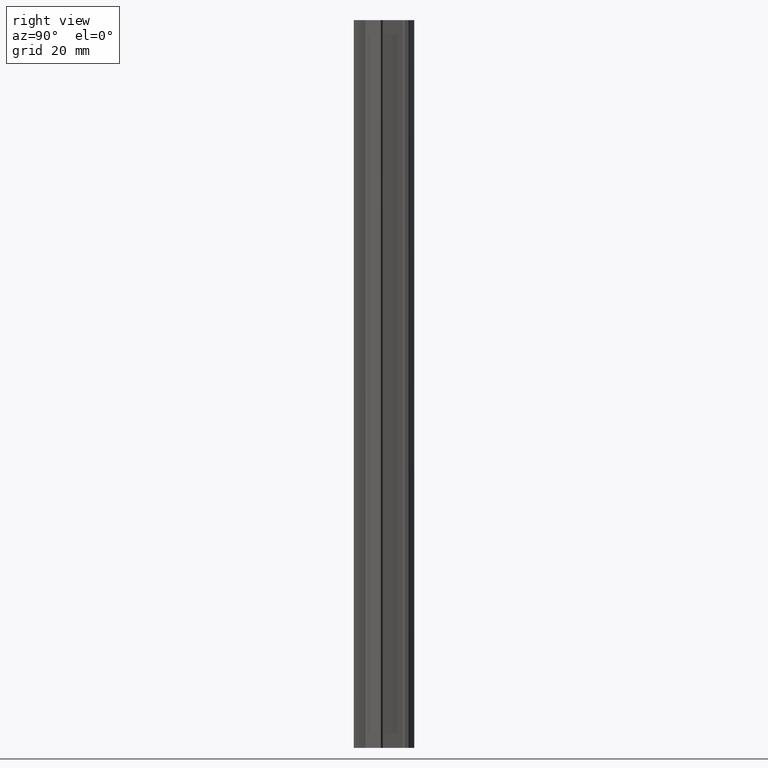
[diagram: clean part render]
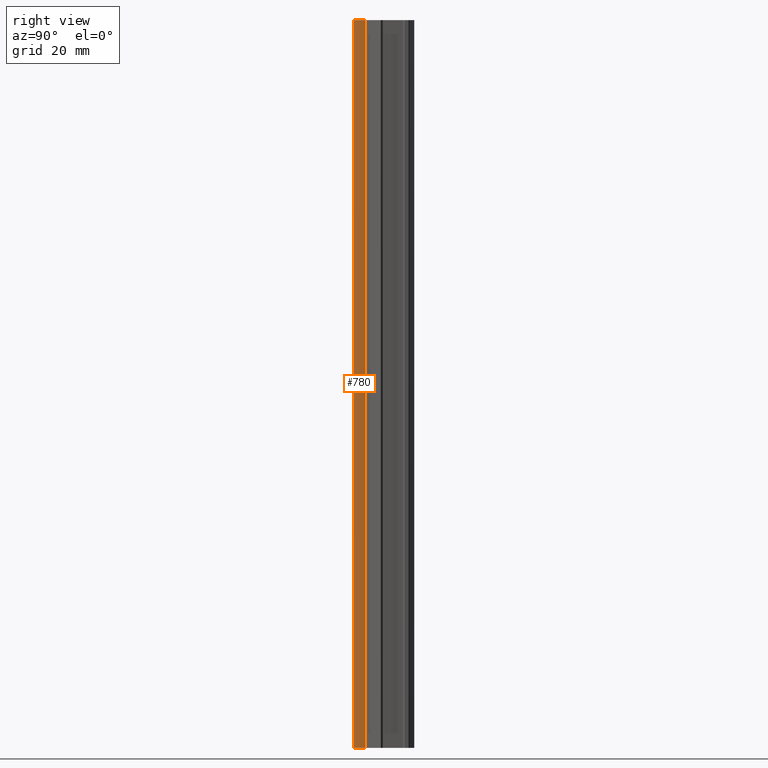
[diagram: same view with one face highlighted and labeled with its STEP entity id]
A machine part, right view. The second image highlights one B-rep face of the part: STEP entity #780.
In plain terms, the highlighted cylindrical surface (edge-blend (fillet) strip) has radius 7.5896 mm, axis along (0, 0, 1).
Its self-contained STEP definition (entity closure, byte-faithful):
#720=CARTESIAN_POINT('',(2.091966180026702,-2.176568620766375,0.0));
#721=VERTEX_POINT('',#720);
#729=CARTESIAN_POINT('',(2.091966180026702,-2.176568620766375,156.662099546738520));
#730=VERTEX_POINT('',#729);
#731=CARTESIAN_POINT('',(2.091966180026702,-2.176568620766375,0.0));
#732=DIRECTION('',(0.0,0.0,1.0));
#733=VECTOR('',#732,156.662099546738520);
#734=LINE('',#731,#733);
#735=EDGE_CURVE('',#721,#730,#734,.T.);
#748=CARTESIAN_POINT('',(-5.199480920887254,-0.070203893272264,-1.000000E-008));
#749=DIRECTION('',(0.0,0.0,1.0));
#750=DIRECTION('',(-0.992880849649745,0.119111789503813,0.0));
#751=AXIS2_PLACEMENT_3D('',#748,#749,#750);
#752=CYLINDRICAL_SURFACE('',#751,7.589596378639001);
#753=CARTESIAN_POINT('',(2.383283097864933,0.251763537660736,0.0));
#754=VERTEX_POINT('',#753);
#755=CARTESIAN_POINT('',(-5.199480920887709,-0.070203893272264,0.0));
#756=DIRECTION('',(0.0,0.0,1.0));
#757=DIRECTION('',(1.0,0.0,0.0));
#758=AXIS2_PLACEMENT_3D('',#755,#756,#757);
#759=CIRCLE('',#758,7.589596378639001);
#760=EDGE_CURVE('',#721,#754,#759,.T.);
#761=ORIENTED_EDGE('',*,*,#760,.T.);
#762=CARTESIAN_POINT('',(2.383283097864933,0.251763537660736,156.662099546738520));
#763=VERTEX_POINT('',#762);
#764=CARTESIAN_POINT('',(2.383283097864933,0.251763537660736,0.0));
#765=DIRECTION('',(0.0,0.0,1.0));
#766=VECTOR('',#765,156.662099546738520);
#767=LINE('',#764,#766);
#768=EDGE_CURVE('',#754,#763,#767,.T.);
#769=ORIENTED_EDGE('',*,*,#768,.T.);
#770=CARTESIAN_POINT('',(-5.199480920887709,-0.070203893272264,156.662099546738520));
#771=DIRECTION('',(0.0,0.0,1.0));
#772=DIRECTION('',(1.0,0.0,0.0));
#773=AXIS2_PLACEMENT_3D('',#770,#771,#772);
#774=CIRCLE('',#773,7.589596378639001);
#775=EDGE_CURVE('',#730,#763,#774,.T.);
#776=ORIENTED_EDGE('',*,*,#775,.F.);
#777=ORIENTED_EDGE('',*,*,#735,.F.);
#778=EDGE_LOOP('',(#761,#769,#776,#777));
#779=FACE_OUTER_BOUND('',#778,.T.);
#780=ADVANCED_FACE('',(#779),#752,.T.);